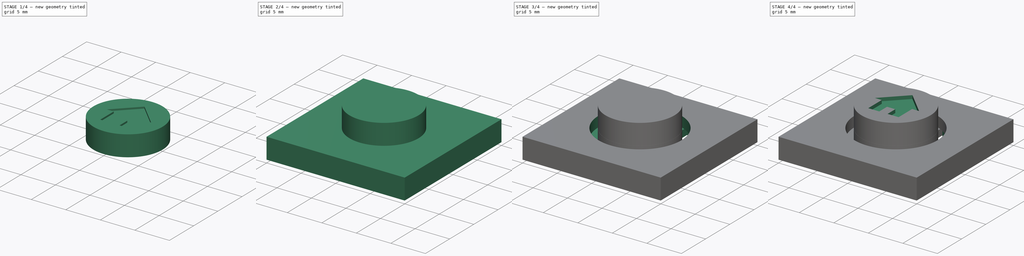
[diagram: build sequence overview — one tinted view per stage of 4, left to right]
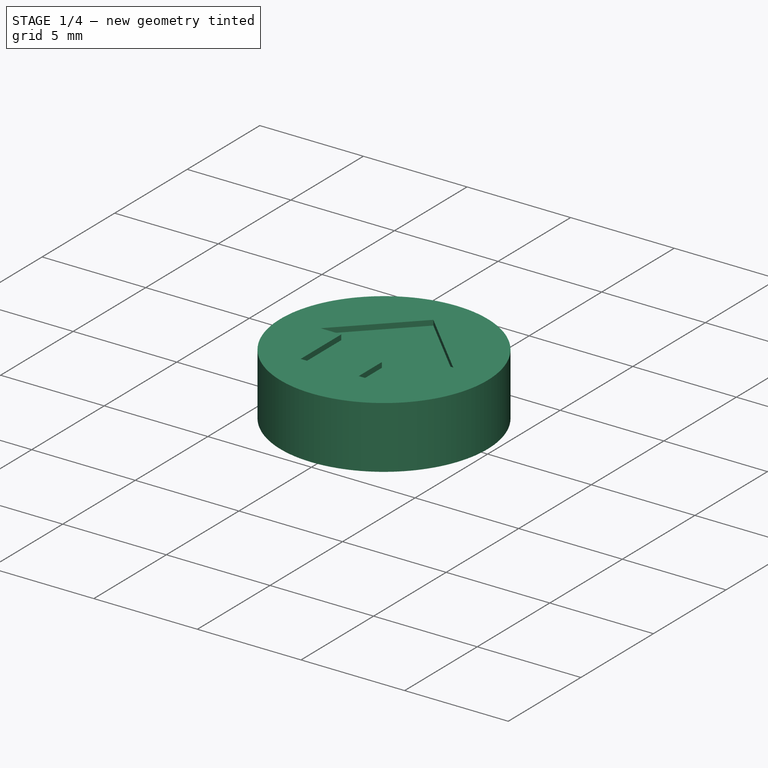
[diagram: stage 1 of 4 — iso view after this stage's code; geometry added in this stage tinted green]
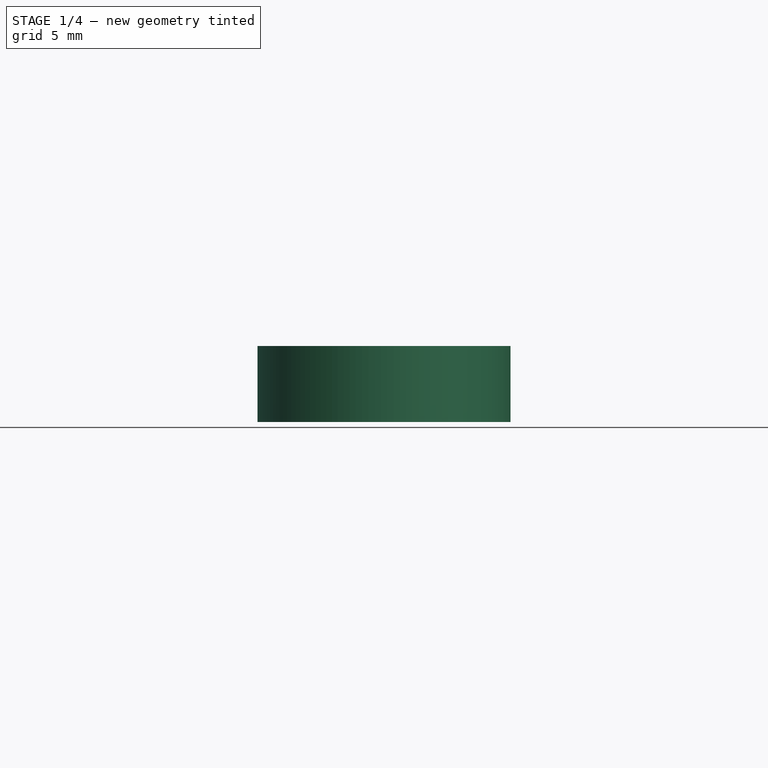
[diagram: stage 1 of 4 — front view after this stage's code; geometry added in this stage tinted green]
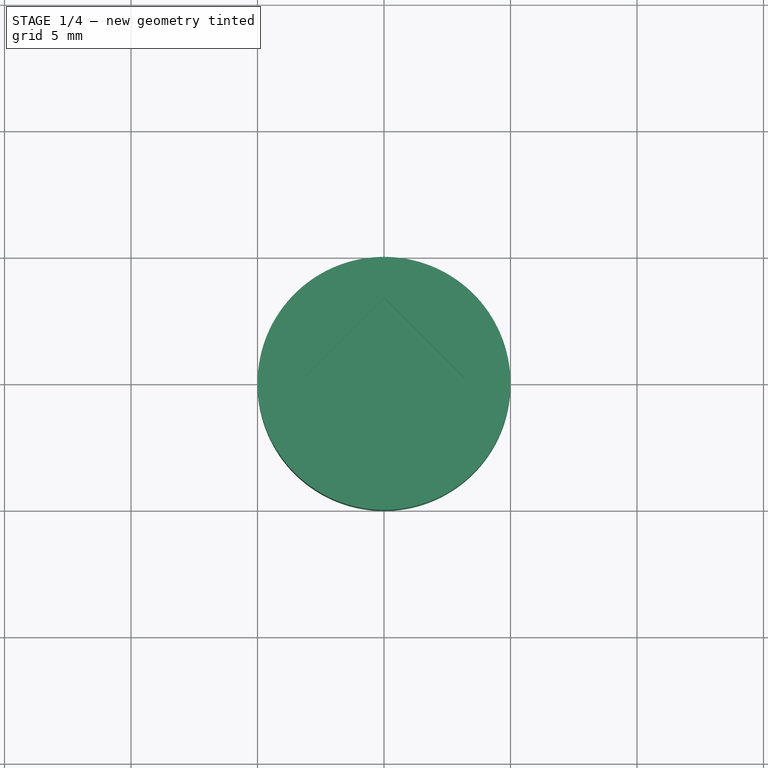
[diagram: stage 1 of 4 — top view after this stage's code; geometry added in this stage tinted green]
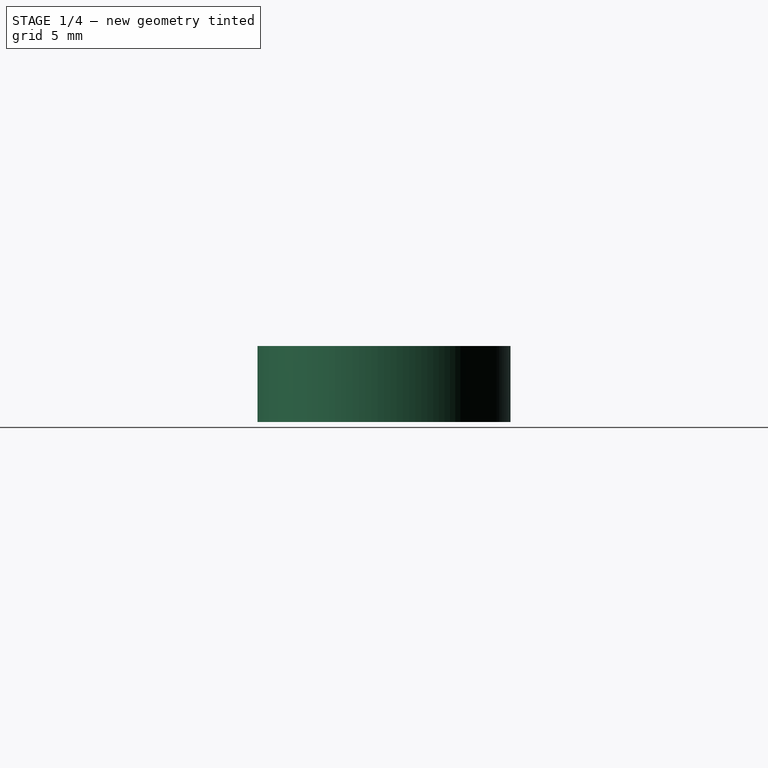
[diagram: stage 1 of 4 — right view after this stage's code; geometry added in this stage tinted green]
FCSTD DOCUMENT  (FreeCAD 0.18R4 (GitTag))
Label: Test_tlacitek
License: All rights reserved
LicenseURL: http://en.wikipedia.org/wiki/All_rights_reserved
objects: Sketcher::SketchObject×10, PartDesign::Pad×5, PartDesign::Pocket×5, PartDesign::Body×2
note: 32 computed .brp shape members not serialized (recipe doc carries the construction recipe); baked Part::Feature solids carry a one-line shape summary decoded from their .brp

FEATURE [PartDesign::Body] Body  label="Test1"
  Group = -> [Sketch,Pad,Sketch002,Pad001,Sketch003,Pocket,Sketch004,Pocket001,Sketch005,Pocket002,Sketch008,Pocket003,Sketch009,Pad002]
  Origin = -> Origin
  Tip = -> Pad002
FEATURE [Sketcher::SketchObject] Sketch010
  MapMode = 5
  Placement = pos=(0,0,6) rot=(0,0,1;0rad)
  sketch-geometry (11):
    g0: LineSegment StartX=-2.2 StartY=-2.6 StartZ=0 EndX=-0.6 EndY=-2.6 EndZ=0
    g1: LineSegment StartX=-0.6 StartY=-2.6 StartZ=0 EndX=-0.6 EndY=-1 EndZ=0
    g2: LineSegment StartX=-0.6 StartY=-1 StartZ=0 EndX=0.6 EndY=-1 EndZ=0
    g3: LineSegment StartX=0.6 StartY=-1 StartZ=0 EndX=0.6 EndY=-2.6 EndZ=0
    g4: LineSegment StartX=0.6 StartY=-2.6 StartZ=0 EndX=2.2 EndY=-2.6 EndZ=0
    g5: LineSegment StartX=2.2 StartY=-2.6 StartZ=0 EndX=2.2 EndY=0.2 EndZ=0
    g6: LineSegment StartX=2.2 StartY=0.2 StartZ=0 EndX=3.2 EndY=0.2 EndZ=0
    g7: LineSegment StartX=3.2 StartY=0.2 StartZ=0 EndX=0 EndY=3.4 EndZ=0
    g8: LineSegment StartX=0 StartY=3.4 StartZ=0 EndX=-3.2 EndY=0.2 EndZ=0
    g9: LineSegment StartX=-3.2 StartY=0.2 StartZ=0 EndX=-2.2 EndY=0.2 EndZ=0
    g10: LineSegment StartX=-2.2 StartY=0.2 StartZ=0 EndX=-2.2 EndY=-2.6 EndZ=0
  constraints (20):
    c: Horizontal(g0)
    c: Coincident(g0,g1)
    c: Vertical(g1)
    c: Coincident(g1,g2)
    c: Horizontal(g2)
    c: Coincident(g2,g3)
    c: Vertical(g3)
    c: Coincident(g3,g4)
    c: Horizontal(g4)
    c: Coincident(g4,g5)
    c: Vertical(g5)
    c: Coincident(g5,g6)
    c: Horizontal(g6)
    c: Coincident(g6,g7)
    c: Coincident(g7,g8)
    c: Coincident(g8,g9)
    c: Horizontal(g9)
    c: Coincident(g9,g10)
    c: Coincident(g10,g0)
    c: Vertical(g10)
FEATURE [Sketcher::SketchObject] Sketch011
  MapMode = 5
  Support = -> [XY_Plane001]
  sketch-geometry (1):
    g0: Circle CenterX=0 CenterY=0 CenterZ=0 NormalX=0 NormalY=0 NormalZ=1 AngleXU=0 Radius=5
  constraints (1):
    c: PointOnObject(g0,g-1)
FEATURE [PartDesign::Pad] Pad003
  Length = 3
  Length2 = 100
  Profile = -> Sketch011
  Type = 0
FEATURE [PartDesign::Pocket] Pocket004
  BaseFeature = -> Pad003
  Length = 3.25
  Length2 = 100
  Profile = -> Sketch010
  Type = 0
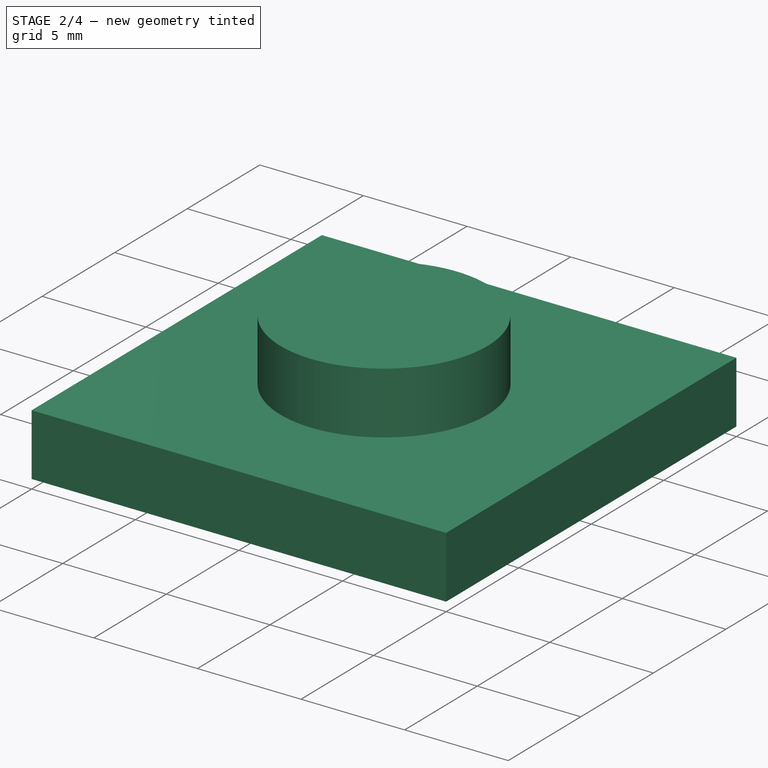
[diagram: stage 2 of 4 — iso view after this stage's code; geometry added in this stage tinted green]
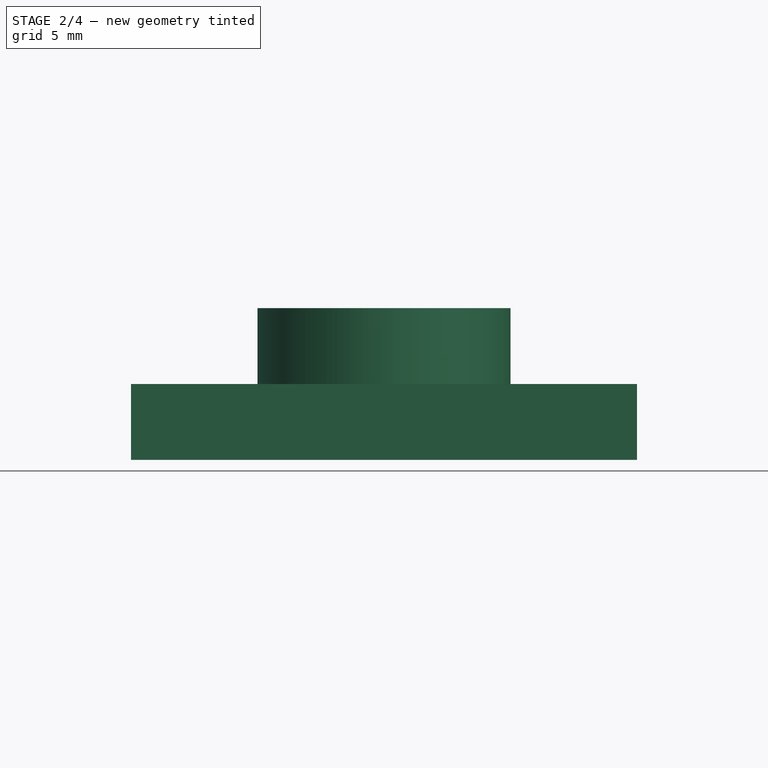
[diagram: stage 2 of 4 — front view after this stage's code; geometry added in this stage tinted green]
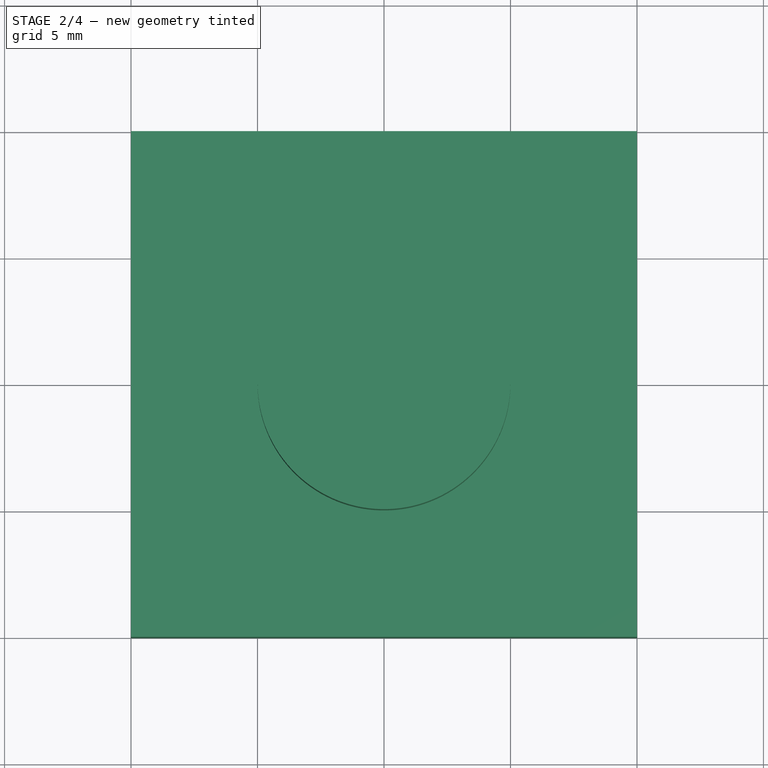
[diagram: stage 2 of 4 — top view after this stage's code; geometry added in this stage tinted green]
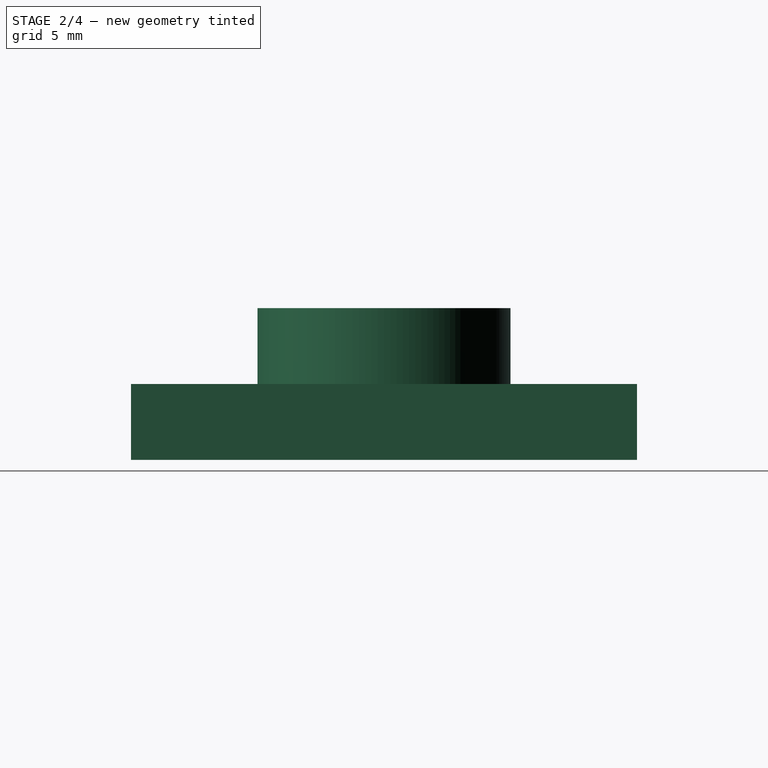
[diagram: stage 2 of 4 — right view after this stage's code; geometry added in this stage tinted green]
FEATURE [Sketcher::SketchObject] Sketch
  MapMode = 5
  Support = -> [XY_Plane]
  sketch-geometry (4):
    g0: LineSegment StartX=-10 StartY=10 StartZ=0 EndX=10 EndY=10 EndZ=0
    g1: LineSegment StartX=10 StartY=10 StartZ=0 EndX=10 EndY=-10 EndZ=0
    g2: LineSegment StartX=10 StartY=-10 StartZ=0 EndX=-10 EndY=-10 EndZ=0
    g3: LineSegment StartX=-10 StartY=-10 StartZ=0 EndX=-10 EndY=10 EndZ=0
  constraints (8):
    c: Coincident(g0,g1)
    c: Coincident(g1,g2)
    c: Coincident(g2,g3)
    c: Coincident(g3,g0)
    c: Horizontal(g0)
    c: Horizontal(g2)
    c: Vertical(g1)
    c: Vertical(g3)
FEATURE [PartDesign::Pad] Pad
  Length = 3
  Length2 = 100
  Profile = -> Sketch
  Type = 0
FEATURE [Sketcher::SketchObject] Sketch002
  MapMode = 5
  Placement = pos=(0,0,3) rot=(0,0,1;0rad)
  Support = -> [Pad]
  sketch-geometry (1):
    g0: Circle CenterX=0 CenterY=0 CenterZ=0 NormalX=0 NormalY=0 NormalZ=1 AngleXU=0 Radius=5
  constraints (1):
    c: Coincident(g0,g-1)
FEATURE [PartDesign::Pad] Pad001
  BaseFeature = -> Pad
  Length = 3
  Length2 = 100
  Profile = -> Sketch002
  Type = 0
FEATURE [Sketcher::SketchObject] Sketch012
  MapMode = 5
  Placement = pos=(0,0,0) rot=(1,0,0;3.14159rad)
  Support = -> [Pocket004]
  sketch-geometry (12):
    g0: LineSegment StartX=-6 StartY=1 StartZ=0 EndX=-10 EndY=1 EndZ=0
    g1: LineSegment StartX=-10 StartY=1 StartZ=0 EndX=-10 EndY=-1 EndZ=0
    g2: LineSegment StartX=-10 StartY=-1 StartZ=0 EndX=-6 EndY=-1 EndZ=0
    g3: LineSegment StartX=6 StartY=1 StartZ=0 EndX=10 EndY=1 EndZ=0
    g4: LineSegment StartX=10 StartY=1 StartZ=0 EndX=10 EndY=-1 EndZ=0
    g5: LineSegment StartX=10 StartY=-1 StartZ=0 EndX=6 EndY=-1 EndZ=0
    g6: LineSegment StartX=6 StartY=1 StartZ=0 EndX=4 EndY=3 EndZ=0
    g7: LineSegment StartX=4 StartY=3 StartZ=0 EndX=4 EndY=-3 EndZ=0
    g8: LineSegment StartX=4 StartY=-3 StartZ=0 EndX=6 EndY=-1 EndZ=0
    g9: LineSegment StartX=-6 StartY=1 StartZ=0 EndX=-4 EndY=3 EndZ=0
    g10: LineSegment StartX=-4 StartY=3 StartZ=0 EndX=-4 EndY=-3 EndZ=0
    g11: LineSegment StartX=-4 StartY=-3 StartZ=0 EndX=-6 EndY=-1 EndZ=0
  constraints (20):
    c: Coincident(g0,g1)
    c: Coincident(g1,g2)
    c: Horizontal(g0)
    c: Horizontal(g2)
    c: Vertical(g1)
    c: Coincident(g3,g4)
    c: Coincident(g4,g5)
    c: Horizontal(g3)
    c: Horizontal(g5)
    c: Vertical(g4)
    c: Coincident(g3,g6)
    c: Coincident(g6,g7)
    c: Vertical(g7)
    c: Coincident(g7,g8)
    c: Coincident(g8,g5)
    c: Coincident(g0,g9)
    c: Coincident(g9,g10)
    c: Vertical(g10)
    c: Coincident(g10,g11)
    c: Coincident(g11,g2)
FEATURE [PartDesign::Pad] Pad004
  BaseFeature = -> Pocket004
  Length = 0.5
  Length2 = 100
  Profile = -> Sketch012
  Reversed = true
  Type = 0
FEATURE [PartDesign::Body] Body001  label="Test2"
  Group = -> [Sketch011,Pad003,Sketch010,Pocket004,Sketch012,Pad004]
  Origin = -> Origin001
  Tip = -> Pad004
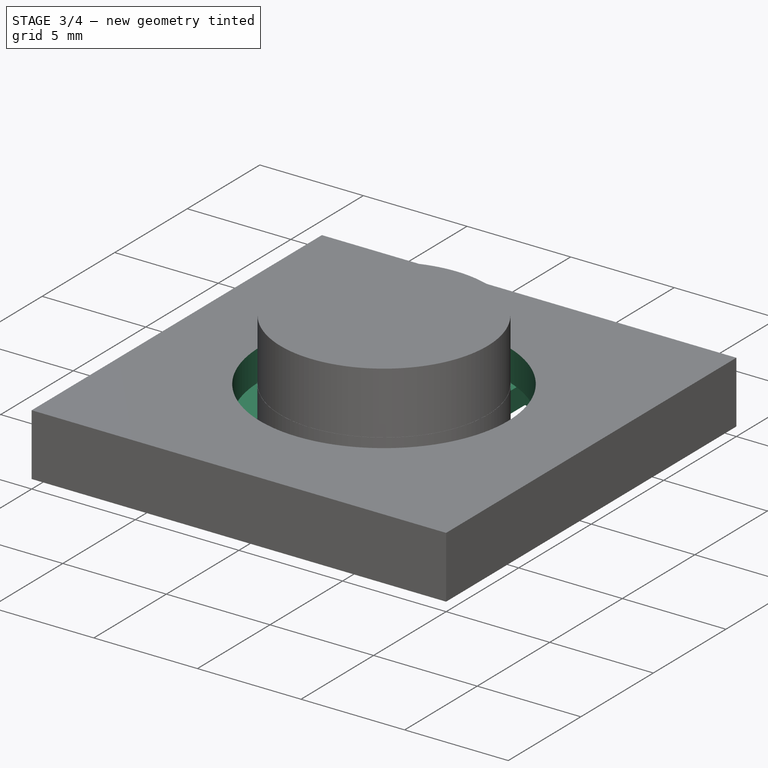
[diagram: stage 3 of 4 — iso view after this stage's code; geometry added in this stage tinted green]
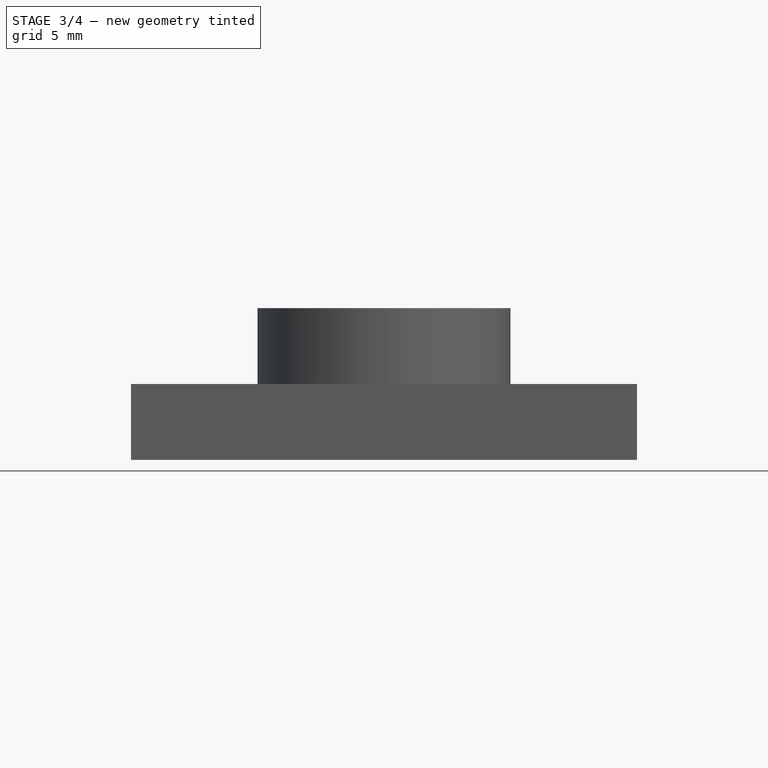
[diagram: stage 3 of 4 — front view after this stage's code; geometry added in this stage tinted green]
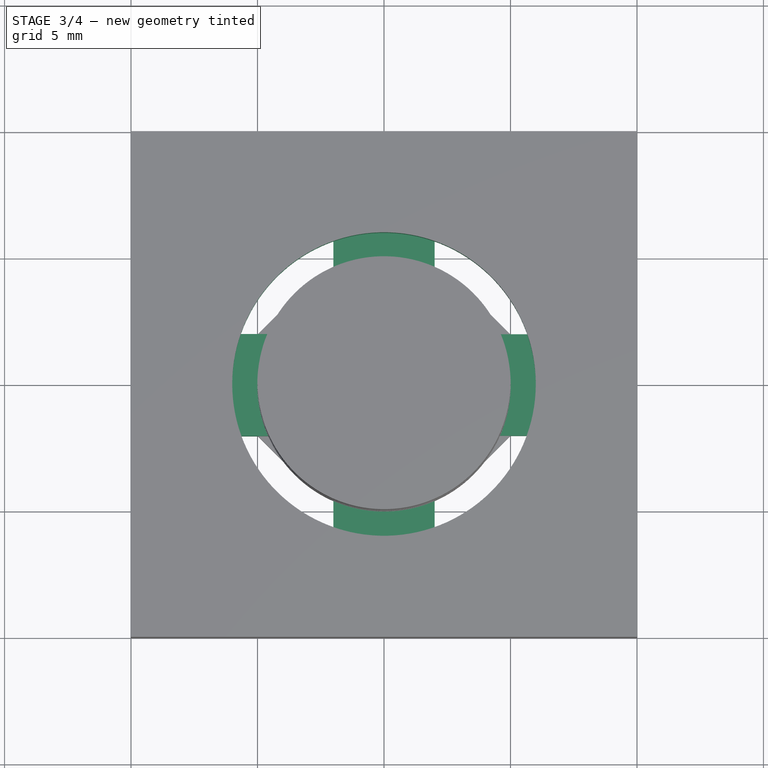
[diagram: stage 3 of 4 — top view after this stage's code; geometry added in this stage tinted green]
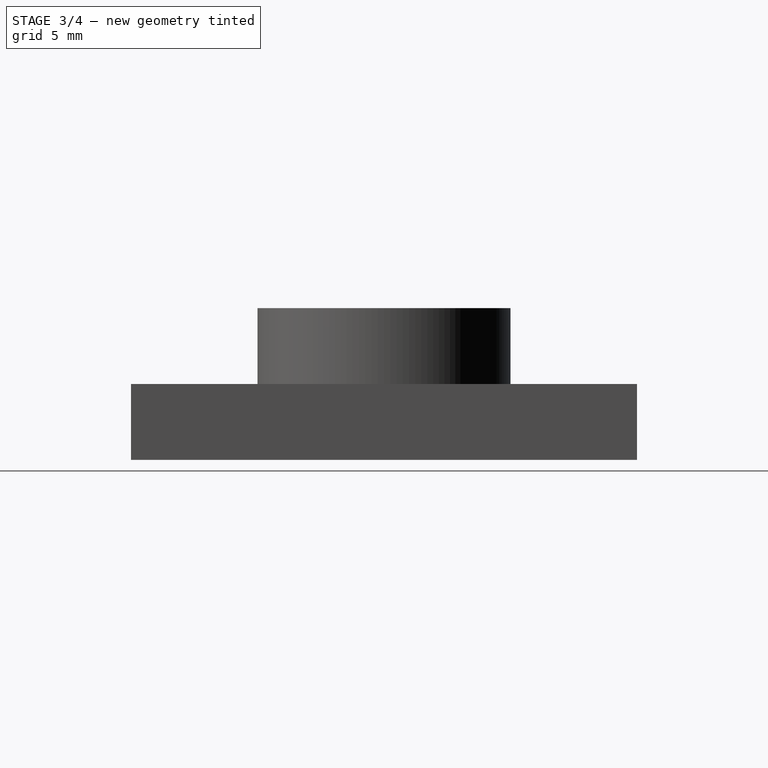
[diagram: stage 3 of 4 — right view after this stage's code; geometry added in this stage tinted green]
FEATURE [Sketcher::SketchObject] Sketch003
  MapMode = 5
  Placement = pos=(0,0,3) rot=(0,0,1;0rad)
  Support = -> [Pad001]
  sketch-geometry (2):
    g0: Circle CenterX=0 CenterY=0 CenterZ=0 NormalX=0 NormalY=0 NormalZ=1 AngleXU=0 Radius=5.00832
    g1: Circle CenterX=0 CenterY=0 CenterZ=0 NormalX=0 NormalY=0 NormalZ=1 AngleXU=0 Radius=6
  constraints (1):
    c: PointOnObject(g0,g-1)
FEATURE [PartDesign::Pocket] Pocket
  BaseFeature = -> Pad001
  Length = 2
  Length2 = 100
  Profile = -> Sketch003
  Type = 0
FEATURE [Sketcher::SketchObject] Sketch004
  MapMode = 5
  Placement = pos=(0,0,1) rot=(0,0,1;0rad)
  Support = -> [Pocket]
  sketch-geometry (16):
    g0: ArcOfCircle CenterX=0 CenterY=0 CenterZ=0 NormalX=0 NormalY=0 NormalZ=1 AngleXU=0 Radius=4.96705 StartAngle=3.56107 EndAngle=4.29793
    g1: ArcOfCircle CenterX=0 CenterY=0 CenterZ=0 NormalX=0 NormalY=0 NormalZ=1 AngleXU=0 Radius=7.14424 StartAngle=3.42868 EndAngle=4.42862
    g2: LineSegment StartX=-6.85452 StartY=2.0139 StartZ=0 EndX=-4.54046 EndY=2.0139 EndZ=0
    g3: LineSegment StartX=-6.85184 StartY=-2.02299 StartZ=0 EndX=-4.53642 EndY=-2.02299 EndZ=0
    g4: LineSegment StartX=-2 StartY=6.85859 StartZ=0 EndX=-2 EndY=4.5466 EndZ=0
    g5: LineSegment StartX=2.0033 StartY=6.85762 StartZ=0 EndX=2.0033 EndY=4.54515 EndZ=0
    g6: LineSegment StartX=4.54535 StartY=2.00284 StartZ=0 EndX=6.85776 EndY=2.00284 EndZ=0
    g7: LineSegment StartX=4.54241 StartY=-2.00951 StartZ=0 EndX=6.85581 EndY=-2.00951 EndZ=0
    g8: ArcOfCircle CenterX=0 CenterY=0 CenterZ=0 NormalX=0 NormalY=0 NormalZ=1 AngleXU=0 Radius=4.96705 StartAngle=0.415038 EndAngle=1.15566
    g9: ArcOfCircle CenterX=0 CenterY=0 CenterZ=0 NormalX=0 NormalY=0 NormalZ=1 AngleXU=0 Radius=7.14424 StartAngle=0.284151 EndAngle=1.28658
    g10: ArcOfCircle CenterX=0 CenterY=0 CenterZ=0 NormalX=0 NormalY=0 NormalZ=1 AngleXU=0 Radius=7.14424 StartAngle=1.85453 EndAngle=2.85583
    g11: ArcOfCircle CenterX=0 CenterY=0 CenterZ=0 NormalX=0 NormalY=0 NormalZ=1 AngleXU=0 Radius=4.96705 StartAngle=1.98521 EndAngle=2.72412
    g12: LineSegment StartX=-2.00018 StartY=-4.54652 StartZ=0 EndX=-2.00018 EndY=-6.85853 EndZ=0
    g13: LineSegment StartX=1.99935 StartY=-4.54689 StartZ=0 EndX=1.99935 EndY=-6.85877 EndZ=0
    g14: ArcOfCircle CenterX=0 CenterY=0 CenterZ=0 NormalX=0 NormalY=0 NormalZ=1 AngleXU=0 Radius=7.14424 StartAngle=4.99603 EndAngle=5.99806
    g15: ArcOfCircle CenterX=0 CenterY=0 CenterZ=0 NormalX=0 NormalY=0 NormalZ=1 AngleXU=0 Radius=4.96705 StartAngle=5.12666 EndAngle=5.86668
  constraints (38):
    c: Coincident(g0,g-1)
    c: Coincident(g1,g0)
    c: Horizontal(g2)
    c: Horizontal(g3)
    c: Coincident(g2,g10)
    c: Vertical(g4)
    c: Vertical(g5)
    c: Horizontal(g6)
    c: Horizontal(g7)
    c: Equal(g0,g8)
    c: Coincident(g0,g8)
    c: Equal(g1,g9)
    c: Coincident(g1,g9)
    c: Coincident(g6,g9)
    c: Coincident(g7,g14)
    c: Equal(g9,g10)
    c: Coincident(g9,g10)
    c: Equal(g8,g11)
    c: Coincident(g8,g11)
    c: Coincident(g4,g10)
    c: Coincident(g5,g8)
    c: Coincident(g4,g11)
    c: Coincident(g3,g0)
    c: Coincident(g3,g1)
    c: Coincident(g2,g11)
    c: Vertical(g12)
    c: Vertical(g13)
    c: Equal(g1,g14)
    c: Coincident(g1,g14)
    c: Coincident(g13,g14)
    c: Coincident(g12,g1)
    c: Equal(g0,g15)
    c: Coincident(g0,g12)
    c: Coincident(g15,g13)
    c: Coincident(g0,g15)
    c: Coincident(g6,g8)
    c: Coincident(g7,g15)
    c: Coincident(g5,g9)
FEATURE [PartDesign::Pocket] Pocket001
  BaseFeature = -> Pocket
  Length = 1
  Length2 = 100
  Profile = -> Sketch004
  Type = 0
FEATURE [Sketcher::SketchObject] Sketch005
  MapMode = 5
  Placement = pos=(0,0,1) rot=(1,0,0;3.14159rad)
  Support = -> [Pocket001]
  sketch-geometry (2):
    g0: Circle CenterX=0 CenterY=0 CenterZ=0 NormalX=0 NormalY=0 NormalZ=1 AngleXU=0 Radius=5
    g1: Circle CenterX=0 CenterY=0 CenterZ=0 NormalX=0 NormalY=0 NormalZ=1 AngleXU=0 Radius=7
  constraints (2):
    c: PointOnObject(g0,g-1)
    c: PointOnObject(g1,g-1)
FEATURE [PartDesign::Pocket] Pocket002
  BaseFeature = -> Pocket001
  Length = 0.5
  Length2 = 100
  Profile = -> Sketch005
  Type = 0
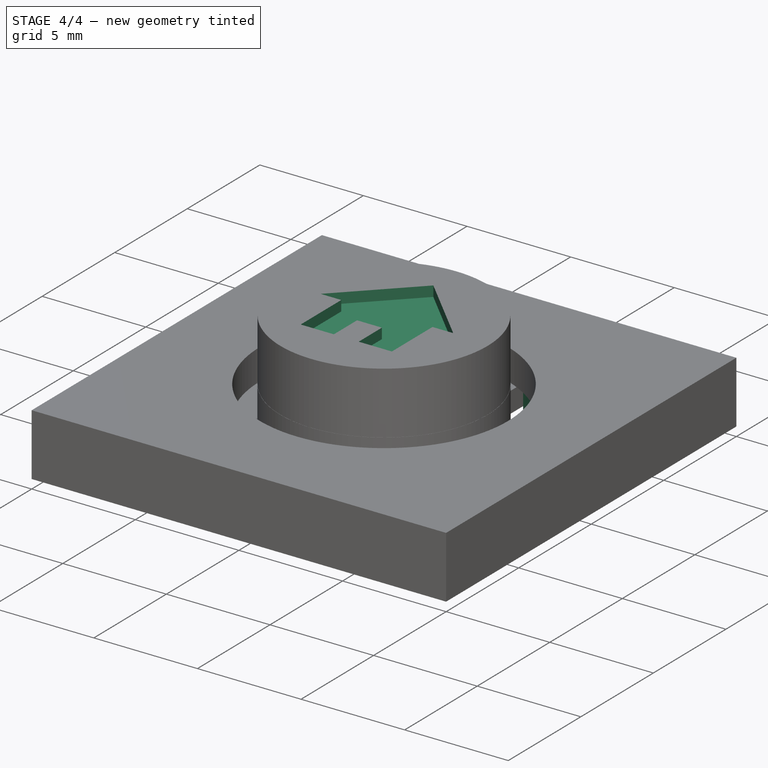
[diagram: stage 4 of 4 — iso view after this stage's code; geometry added in this stage tinted green]
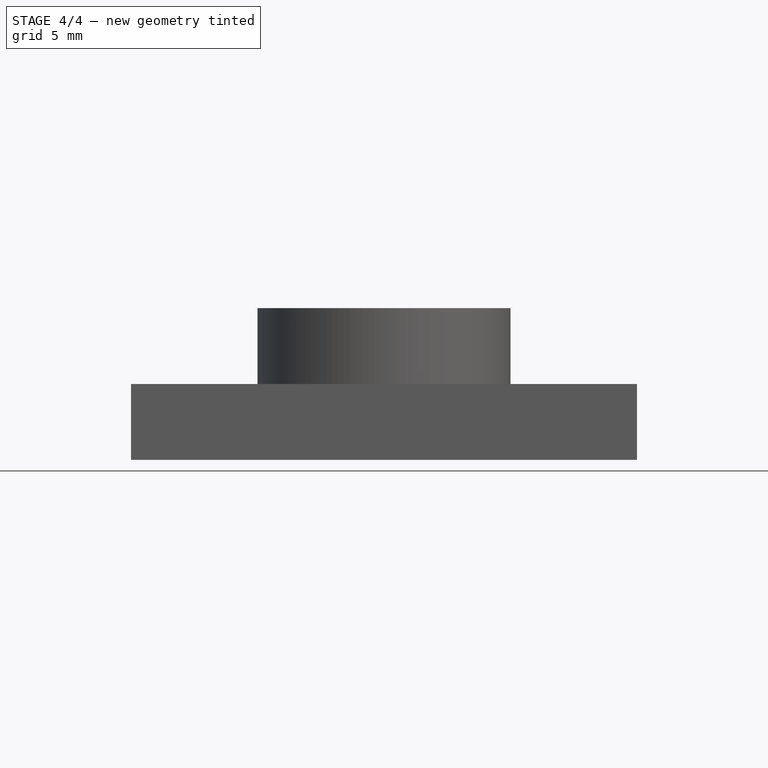
[diagram: stage 4 of 4 — front view after this stage's code; geometry added in this stage tinted green]
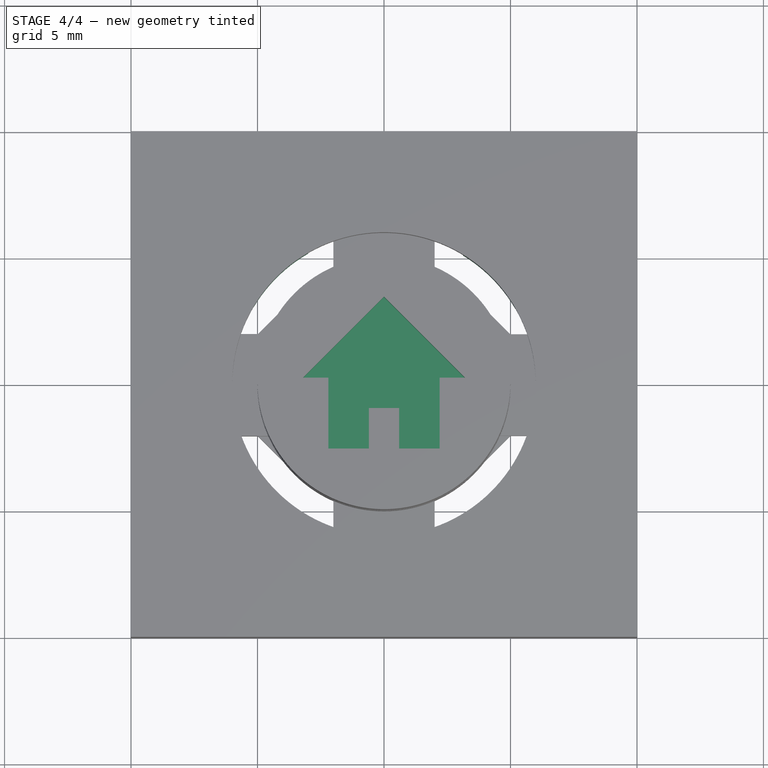
[diagram: stage 4 of 4 — top view after this stage's code; geometry added in this stage tinted green]
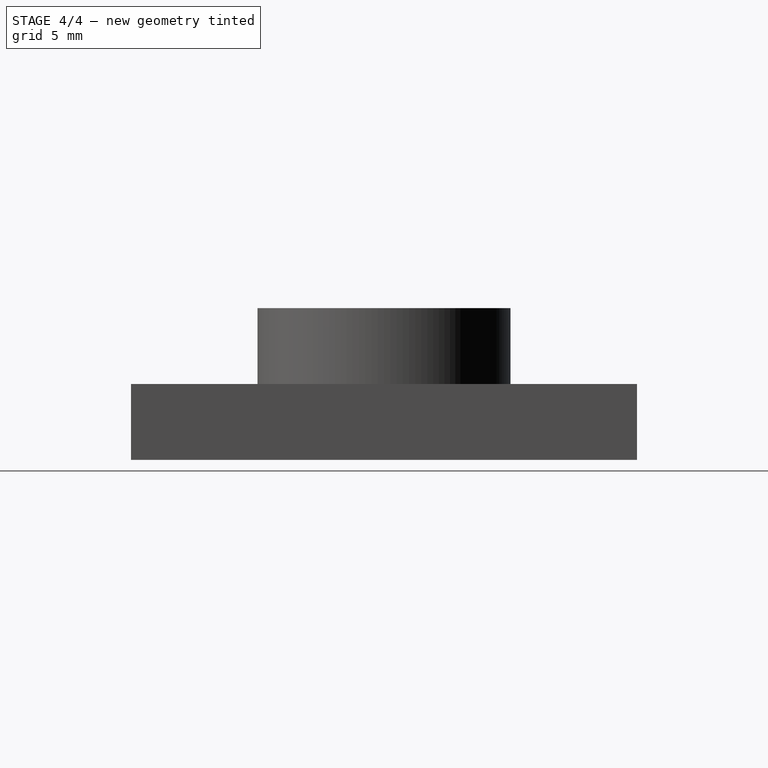
[diagram: stage 4 of 4 — right view after this stage's code; geometry added in this stage tinted green]
FEATURE [Sketcher::SketchObject] Sketch008
  MapMode = 5
  Placement = pos=(0,0,6) rot=(0,0,1;0rad)
  sketch-geometry (11):
    g0: LineSegment StartX=-2.2 StartY=-2.6 StartZ=0 EndX=-0.6 EndY=-2.6 EndZ=0
    g1: LineSegment StartX=-0.6 StartY=-2.6 StartZ=0 EndX=-0.6 EndY=-1 EndZ=0
    g2: LineSegment StartX=-0.6 StartY=-1 StartZ=0 EndX=0.6 EndY=-1 EndZ=0
    g3: LineSegment StartX=0.6 StartY=-1 StartZ=0 EndX=0.6 EndY=-2.6 EndZ=0
    g4: LineSegment StartX=0.6 StartY=-2.6 StartZ=0 EndX=2.2 EndY=-2.6 EndZ=0
    g5: LineSegment StartX=2.2 StartY=-2.6 StartZ=0 EndX=2.2 EndY=0.2 EndZ=0
    g6: LineSegment StartX=2.2 StartY=0.2 StartZ=0 EndX=3.2 EndY=0.2 EndZ=0
    g7: LineSegment StartX=3.2 StartY=0.2 StartZ=0 EndX=0 EndY=3.4 EndZ=0
    g8: LineSegment StartX=0 StartY=3.4 StartZ=0 EndX=-3.2 EndY=0.2 EndZ=0
    g9: LineSegment StartX=-3.2 StartY=0.2 StartZ=0 EndX=-2.2 EndY=0.2 EndZ=0
    g10: LineSegment StartX=-2.2 StartY=0.2 StartZ=0 EndX=-2.2 EndY=-2.6 EndZ=0
  constraints (20):
    c: Horizontal(g0)
    c: Coincident(g0,g1)
    c: Vertical(g1)
    c: Coincident(g1,g2)
    c: Horizontal(g2)
    c: Coincident(g2,g3)
    c: Vertical(g3)
    c: Coincident(g3,g4)
    c: Horizontal(g4)
    c: Coincident(g4,g5)
    c: Vertical(g5)
    c: Coincident(g5,g6)
    c: Horizontal(g6)
    c: Coincident(g6,g7)
    c: Coincident(g7,g8)
    c: Coincident(g8,g9)
    c: Horizontal(g9)
    c: Coincident(g9,g10)
    c: Coincident(g10,g0)
    c: Vertical(g10)
FEATURE [PartDesign::Pocket] Pocket003
  BaseFeature = -> Pocket002
  Length = 0.5
  Length2 = 100
  Profile = -> Sketch008
  Type = 0
FEATURE [Sketcher::SketchObject] Sketch009
  AttachmentOffset = pos=(0,0,-0.5) rot=(0,0,1;0rad)
  MapMode = 5
  Placement = pos=(0,0,1.5) rot=(1,0,0;3.14159rad)
  Support = -> [Pocket003]
  sketch-geometry (16):
    g0: ArcOfCircle CenterX=0 CenterY=0 CenterZ=0 NormalX=0 NormalY=0 NormalZ=1 AngleXU=0 Radius=6.0067 StartAngle=2.10264 EndAngle=2.58738
    g1: ArcOfCircle CenterX=0 CenterY=0 CenterZ=0 NormalX=0 NormalY=0 NormalZ=1 AngleXU=0 Radius=7.64274 StartAngle=1.98075 EndAngle=2.71517
    g2: LineSegment StartX=-6.95834 StartY=3.16117 StartZ=0 EndX=-5.10759 EndY=3.16117 EndZ=0
    g3: LineSegment StartX=-5.15187 StartY=-3.08847 StartZ=0 EndX=-6.99091 EndY=-3.08847 EndZ=0
    g4: LineSegment StartX=-3.04613 StartY=5.17702 StartZ=0 EndX=-3.04613 EndY=7.00946 EndZ=0
    g5: LineSegment StartX=-3 StartY=-5.20389 StartZ=0 EndX=-3 EndY=-7.02933 EndZ=0
    g6: LineSegment StartX=3.12356 StartY=-5.13067 StartZ=0 EndX=3.12356 EndY=-6.9753 EndZ=0
    g7: LineSegment StartX=5.17636 StartY=3.04725 StartZ=0 EndX=7.00897 EndY=3.04725 EndZ=0
    g8: LineSegment StartX=5.19696 StartY=-3.01198 StartZ=0 EndX=7.0242 EndY=-3.01198 EndZ=0
    g9: LineSegment StartX=3.02918 StartY=7.0168 StartZ=0 EndX=3.02918 EndY=5.18696 EndZ=0
    g10: ArcOfCircle CenterX=0 CenterY=0 CenterZ=0 NormalX=0 NormalY=0 NormalZ=1 AngleXU=0 Radius=7.64274 StartAngle=0.410112 EndAngle=1.16326
    g11: ArcOfCircle CenterX=0 CenterY=0 CenterZ=0 NormalX=0 NormalY=0 NormalZ=1 AngleXU=0 Radius=6.0067 StartAngle=0.532059 EndAngle=1.04222
    g12: ArcOfCircle CenterX=0 CenterY=0 CenterZ=0 NormalX=0 NormalY=0 NormalZ=1 AngleXU=0 Radius=7.64274 StartAngle=5.13341 EndAngle=5.8781
    g13: ArcOfCircle CenterX=0 CenterY=0 CenterZ=0 NormalX=0 NormalY=0 NormalZ=1 AngleXU=0 Radius=6.0067 StartAngle=5.25925 EndAngle=5.75793
    g14: ArcOfCircle CenterX=0 CenterY=0 CenterZ=0 NormalX=0 NormalY=0 NormalZ=1 AngleXU=0 Radius=7.64274 StartAngle=3.55759 EndAngle=4.30901
    g15: ArcOfCircle CenterX=0 CenterY=0 CenterZ=0 NormalX=0 NormalY=0 NormalZ=1 AngleXU=0 Radius=6.0067 StartAngle=3.68163 EndAngle=4.18943
  constraints (38):
    c: Coincident(g0,g-1)
    c: Coincident(g1,g0)
    c: Horizontal(g2)
    c: Horizontal(g3)
    c: Vertical(g4)
    c: Vertical(g5)
    c: Vertical(g6)
    c: Horizontal(g7)
    c: Horizontal(g8)
    c: Vertical(g9)
    c: Coincident(g4,g1)
    c: Coincident(g4,g0)
    c: Coincident(g9,g11)
    c: Coincident(g9,g10)
    c: Equal(g1,g10)
    c: Coincident(g12,g8)
    c: Coincident(g10,g7)
    c: Coincident(g1,g10)
    c: Equal(g0,g11)
    c: Coincident(g0,g11)
    c: Coincident(g7,g11)
    c: Coincident(g8,g13)
    c: Equal(g1,g12)
    c: Coincident(g1,g12)
    c: Equal(g0,g13)
    c: Coincident(g0,g13)
    c: Coincident(g6,g13)
    c: Coincident(g6,g12)
    c: Coincident(g5,g14)
    c: Coincident(g5,g15)
    c: Equal(g1,g14)
    c: Coincident(g1,g14)
    c: Equal(g0,g15)
    c: Coincident(g0,g15)
    c: Coincident(g2,g0)
    c: Coincident(g3,g15)
    c: Coincident(g3,g14)
    c: Coincident(g2,g1)
FEATURE [PartDesign::Pad] Pad002
  BaseFeature = -> Pocket003
  Length = 1.5
  Length2 = 100
  Profile = -> Sketch009
  Type = 0
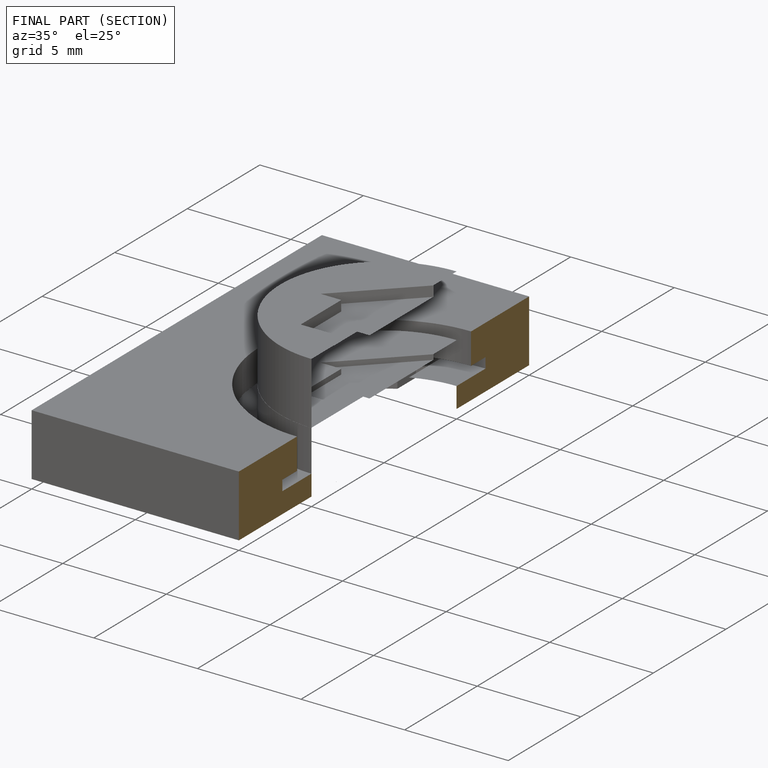
[diagram: finished part — half-section view (interior)]
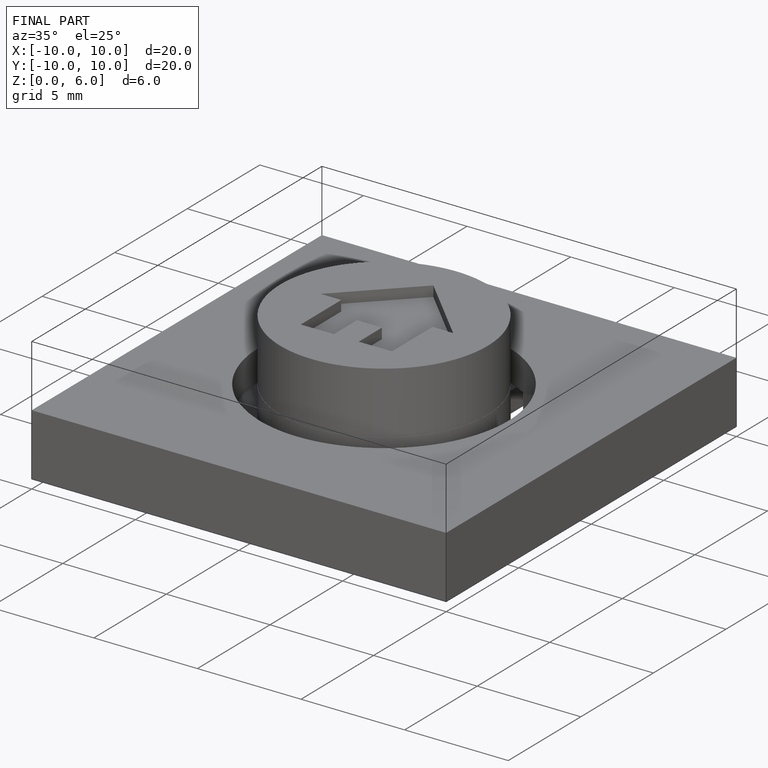
[diagram: finished part — iso view with bounding-box wireframe]
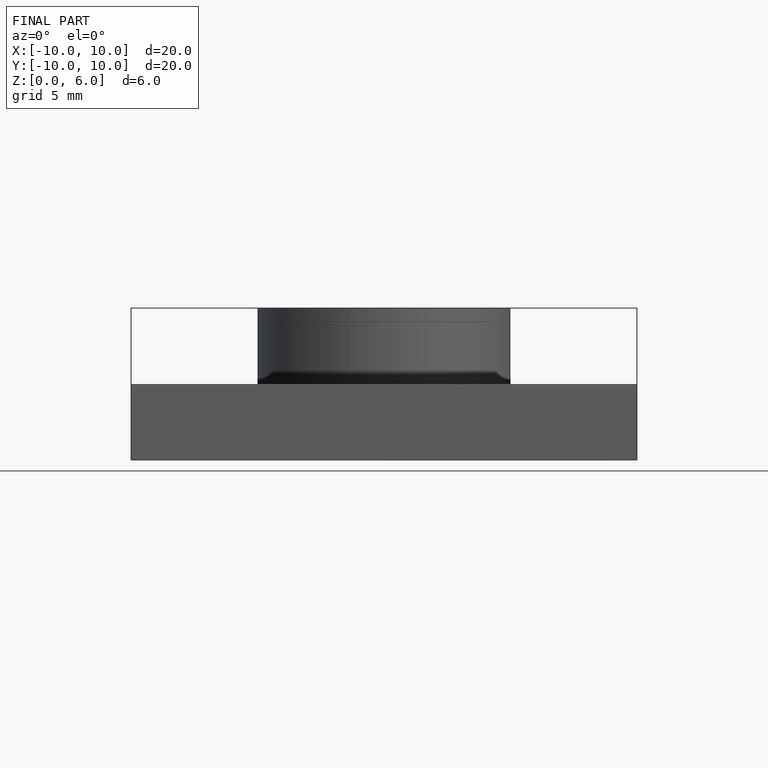
[diagram: finished part — front view with bounding-box wireframe]
